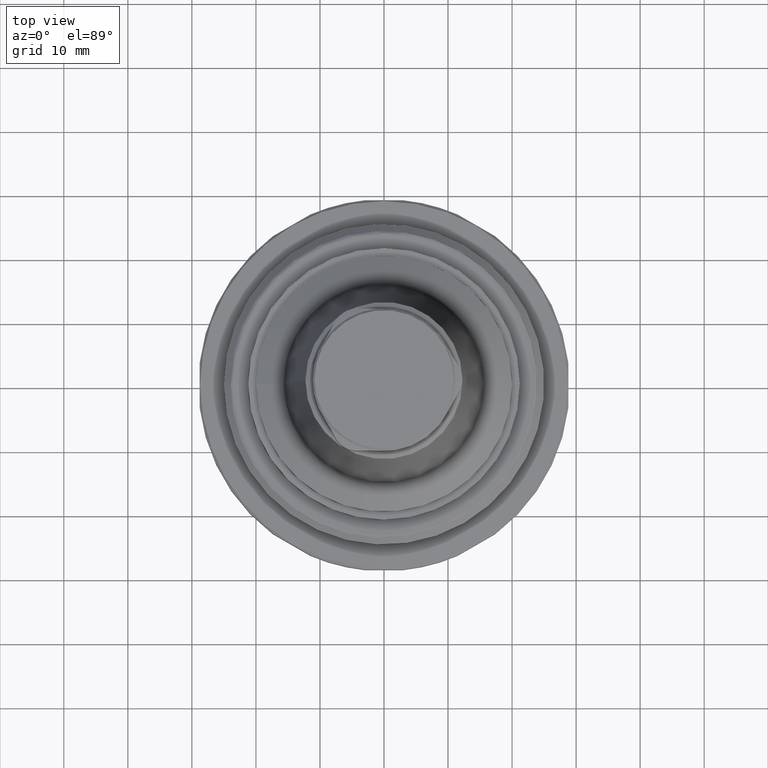
[diagram: clean part render]
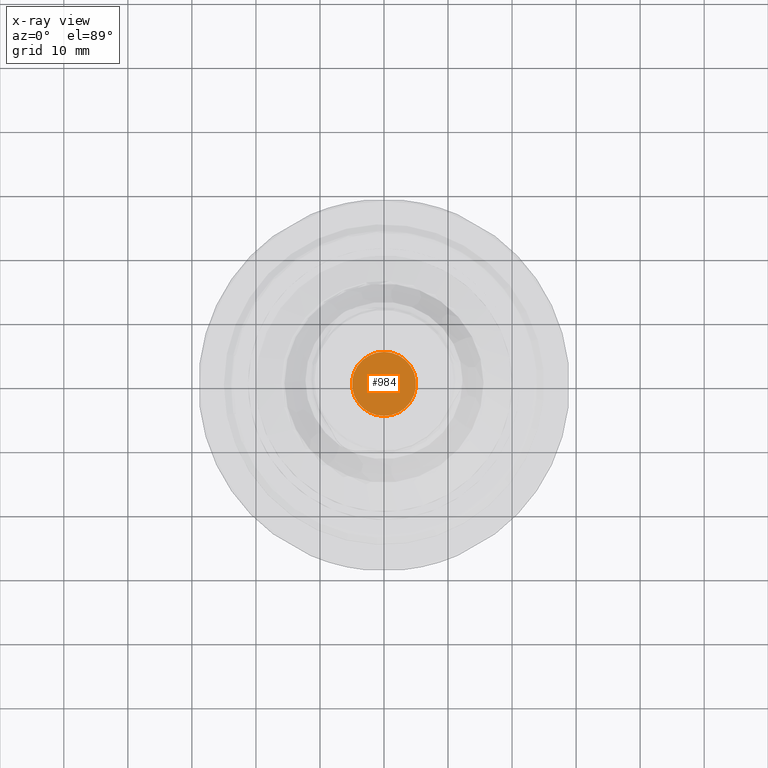
[diagram: x-ray — body ghosted, one internal face saturated and labeled with its STEP entity id]
A machine part, top view, then the same camera in x-ray: the body is ghosted and one INTERNAL B-rep face — a face not visible from any outside direction — is saturated and labeled: STEP entity #984.
In plain terms, the highlighted planar face has unit normal (0, 0, 1).
Its self-contained STEP definition (entity closure, byte-faithful):
#115=PLANE('',#1122);
#172=CIRCLE('',#1121,5.);
#426=ORIENTED_EDGE('',*,*,#553,.F.);
#553=EDGE_CURVE('',#646,#646,#172,.T.);
#646=VERTEX_POINT('',#1852);
#788=EDGE_LOOP('',(#426));
#888=FACE_BOUND('',#788,.T.);
#984=ADVANCED_FACE('',(#888),#115,.F.);
#1121=AXIS2_PLACEMENT_3D('',#1851,#1399,#1400);
#1122=AXIS2_PLACEMENT_3D('',#1853,#1401,#1402);
#1399=DIRECTION('',(0.,0.,1.));
#1400=DIRECTION('',(0.,-1.,0.));
#1401=DIRECTION('',(0.,0.,1.));
#1402=DIRECTION('',(1.,0.,0.));
#1851=CARTESIAN_POINT('',(0.,0.,7.));
#1852=CARTESIAN_POINT('',(0.,-5.,7.));
#1853=CARTESIAN_POINT('',(0.,0.,7.));